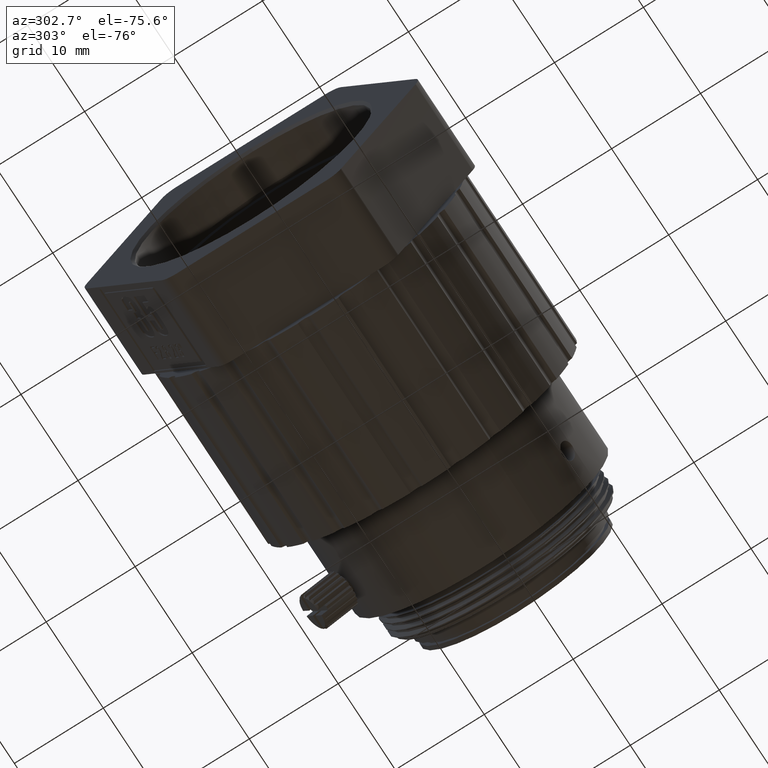
[diagram: clean part render]
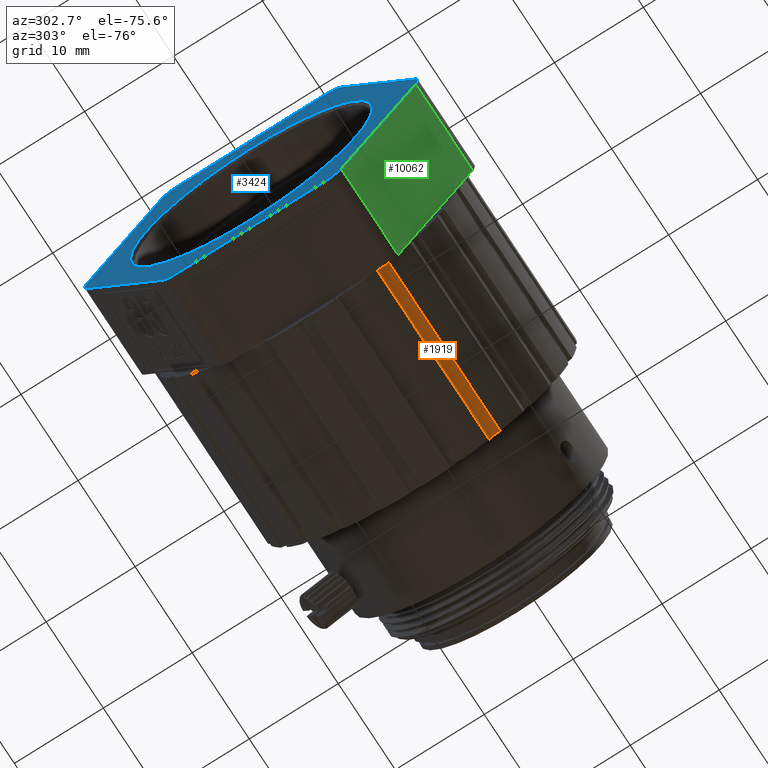
[diagram: same view with three faces highlighted in distinct colors, each labeled with its STEP entity id]
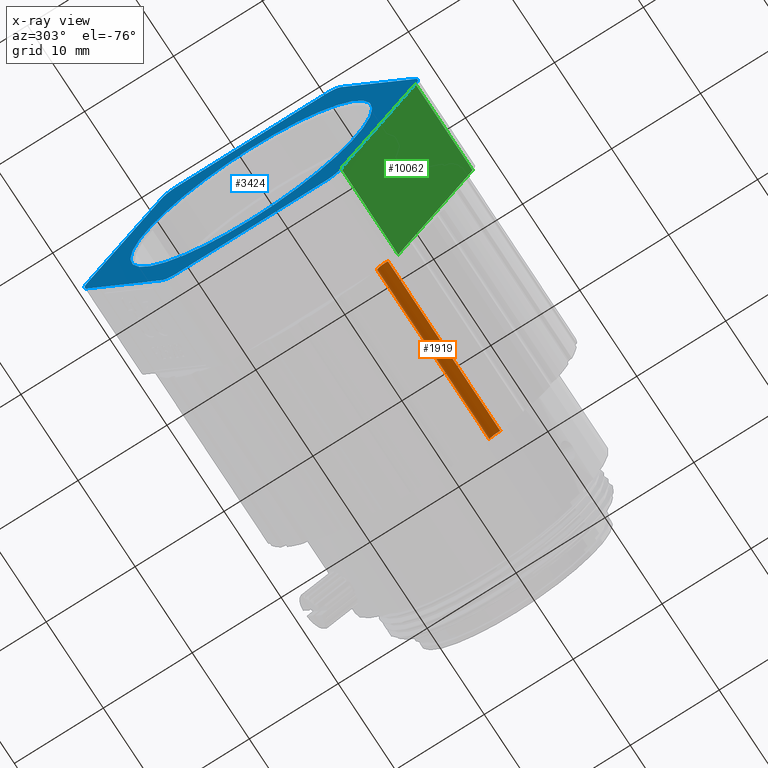
[diagram: x-ray of the same camera — body ghosted, the three highlighted faces saturated]
A machine part, auxiliary view with three faces highlighted in distinct colors.
The next image is the same camera in x-ray (body ghosted, the three faces saturated) — at least one of them is partly hidden behind the body in this view.
Their STEP definitions:

[orange] entity #1919 — the highlighted cylindrical surface (edge-blend (fillet) strip) has radius 1 mm, axis along (-1, 0, 0).
#409 = VERTEX_POINT ( 'NONE', #12968 ) ;
#706 = DIRECTION ( 'NONE',  ( -1.000000000000000000, 0.000000000000000000, 0.000000000000000000 ) ) ;
#1034 = VERTEX_POINT ( 'NONE', #4685 ) ;
#1919 = ADVANCED_FACE ( 'NONE', ( #9490 ), #14355, .F. ) ;
#3427 = CARTESIAN_POINT ( 'NONE',  ( 22.76177132339851639, -5.487021484132825755, 30.45945859609111750 ) ) ;
#3593 = CIRCLE ( 'NONE', #8950, 1.000000000000001332 ) ;
#4685 = CARTESIAN_POINT ( 'NONE',  ( -11.43804180327911979, -4.532625908064136233, 30.75800354141866677 ) ) ;
#5323 = CARTESIAN_POINT ( 'NONE',  ( -17.27467827770134789, -5.766780465729038241, 31.41952886029908498 ) ) ;
#5591 = EDGE_LOOP ( 'NONE', ( #10936, #7680, #13761, #15342 ) ) ;
#5734 = EDGE_CURVE ( 'NONE', #7449, #1034, #3593, .T. ) ;
#5873 = CARTESIAN_POINT ( 'NONE',  ( 8.259214877692100387, -5.487021484132825755, 30.45945859609111750 ) ) ;
#6513 = DIRECTION ( 'NONE',  ( 0.000000000000000000, -0.4724273177222768072, -0.8813696327136163466 ) ) ;
#7075 = DIRECTION ( 'NONE',  ( -1.000000000000000000, 0.000000000000000000, 0.000000000000000000 ) ) ;
#7449 = VERTEX_POINT ( 'NONE', #15158 ) ;
#7509 = EDGE_CURVE ( 'NONE', #7449, #409, #11402, .T. ) ;
#7680 = ORIENTED_EDGE ( 'NONE', *, *, #9180, .F. ) ;
#8924 = CARTESIAN_POINT ( 'NONE',  ( -11.43804180327911979, -5.487021484132825755, 30.45945859609111750 ) ) ;
#8950 = AXIS2_PLACEMENT_3D ( 'NONE', #8924, #13636, #6513 ) ;
#9067 = CIRCLE ( 'NONE', #9084, 1.000000000000001332 ) ;
#9084 = AXIS2_PLACEMENT_3D ( 'NONE', #5873, #7075, #11951 ) ;
#9180 = EDGE_CURVE ( 'NONE', #409, #12926, #9067, .T. ) ;
#9490 = FACE_OUTER_BOUND ( 'NONE', #5591, .T. ) ;
#9503 = AXIS2_PLACEMENT_3D ( 'NONE', #3427, #13165, #11002 ) ;
#9505 = VECTOR ( 'NONE', #706, 1000.000000000000000 ) ;
#10432 = LINE ( 'NONE', #14252, #9505 ) ;
#10800 = CARTESIAN_POINT ( 'NONE',  ( 8.259214877692100387, -4.532625908064136233, 30.75800354141866677 ) ) ;
#10936 = ORIENTED_EDGE ( 'NONE', *, *, #11591, .F. ) ;
#11002 = DIRECTION ( 'NONE',  ( 0.000000000000000000, -0.4724273177222768072, -0.8813696327136163466 ) ) ;
#11402 = LINE ( 'NONE', #5323, #14450 ) ;
#11591 = EDGE_CURVE ( 'NONE', #12926, #1034, #10432, .T. ) ;
#11951 = DIRECTION ( 'NONE',  ( 0.000000000000000000, -0.4724273177222768072, -0.8813696327136163466 ) ) ;
#12361 = DIRECTION ( 'NONE',  ( 1.000000000000000000, -0.000000000000000000, -0.000000000000000000 ) ) ;
#12926 = VERTEX_POINT ( 'NONE', #10800 ) ;
#12968 = CARTESIAN_POINT ( 'NONE',  ( 8.259214877692100387, -5.766780465729038241, 31.41952886029908498 ) ) ;
#13165 = DIRECTION ( 'NONE',  ( -1.000000000000000000, 0.000000000000000000, 0.000000000000000000 ) ) ;
#13636 = DIRECTION ( 'NONE',  ( -1.000000000000000000, 0.000000000000000000, 0.000000000000000000 ) ) ;
#13761 = ORIENTED_EDGE ( 'NONE', *, *, #7509, .F. ) ;
#14252 = CARTESIAN_POINT ( 'NONE',  ( -17.27467827770134789, -4.532625908064080278, 30.75800354141866677 ) ) ;
#14355 = CYLINDRICAL_SURFACE ( 'NONE', #9503, 1.000000000000001332 ) ;
#14450 = VECTOR ( 'NONE', #12361, 1000.000000000000000 ) ;
#15158 = CARTESIAN_POINT ( 'NONE',  ( -11.43804180327911979, -5.766780465729038241, 31.41952886029908498 ) ) ;
#15342 = ORIENTED_EDGE ( 'NONE', *, *, #5734, .T. ) ;

[blue] entity #3424 — the highlighted planar face has unit normal (1, 0, 0).
#1 = DIRECTION ( 'NONE',  ( 0.000000000000000000, 0.000000000000000000, 1.000000000000000000 ) ) ;
#450 = CARTESIAN_POINT ( 'NONE',  ( -21.53823426454803780, -13.63200210808823698, 46.50038591147402656 ) ) ;
#453 = CARTESIAN_POINT ( 'NONE',  ( -21.53823426454803780, 22.16371458166843667, 46.50038591147355760 ) ) ;
#612 = CARTESIAN_POINT ( 'NONE',  ( -21.53823426454803780, -15.36405291565712261, 45.50038591147394840 ) ) ;
#617 = DIRECTION ( 'NONE',  ( 0.000000000000000000, -0.5000000000000008882, -0.8660254037844381525 ) ) ;
#637 = DIRECTION ( 'NONE',  ( 0.000000000000000000, 0.000000000000000000, 1.000000000000000000 ) ) ;
#684 = VECTOR ( 'NONE', #11841, 1000.000000000000114 ) ;
#925 = DIRECTION ( 'NONE',  ( 0.000000000000000000, 0.000000000000000000, 1.000000000000000000 ) ) ;
#949 = EDGE_CURVE ( 'NONE', #5940, #12330, #5157, .T. ) ;
#1495 = ORIENTED_EDGE ( 'NONE', *, *, #6230, .F. ) ;
#1571 = CARTESIAN_POINT ( 'NONE',  ( -21.53823426454803780, -15.94140318484704721, 46.50038591147401235 ) ) ;
#1739 = CARTESIAN_POINT ( 'NONE',  ( -21.53823426454803780, -6.992474012407878803, 62.00038591147402656 ) ) ;
#1891 = CARTESIAN_POINT ( 'NONE',  ( -21.53823426454803780, 21.58636431247873588, 45.50038591147351497 ) ) ;
#1914 = CARTESIAN_POINT ( 'NONE',  ( -21.53823426454803780, 13.21478540922971234, 31.00038591147420775 ) ) ;
#1931 = VECTOR ( 'NONE', #12576, 1000.000000000000000 ) ;
#2114 = CIRCLE ( 'NONE', #8495, 2.000000000000001776 ) ;
#2321 = CIRCLE ( 'NONE', #6359, 13.59990427942969760 ) ;
#2367 = AXIS2_PLACEMENT_3D ( 'NONE', #14351, #14195, #5646 ) ;
#2419 = VERTEX_POINT ( 'NONE', #612 ) ;
#2433 = CARTESIAN_POINT ( 'NONE',  ( -21.53823426454803780, -15.36405291565712261, 47.50038591147410472 ) ) ;
#2547 = EDGE_CURVE ( 'NONE', #15717, #3585, #2114, .T. ) ;
#2674 = VERTEX_POINT ( 'NONE', #2433 ) ;
#2802 = ORIENTED_EDGE ( 'NONE', *, *, #15022, .F. ) ;
#2988 = LINE ( 'NONE', #7929, #11648 ) ;
#3063 = DIRECTION ( 'NONE',  ( 0.000000000000000000, -1.000000000000000000, 3.641974784817423192E-16 ) ) ;
#3275 = VERTEX_POINT ( 'NONE', #1914 ) ;
#3424 = ADVANCED_FACE ( 'NONE', ( #3510, #10935 ), #4784, .F. ) ;
#3510 = FACE_OUTER_BOUND ( 'NONE', #12028, .T. ) ;
#3550 = EDGE_CURVE ( 'NONE', #12330, #2674, #9152, .T. ) ;
#3585 = VERTEX_POINT ( 'NONE', #3761 ) ;
#3591 = VERTEX_POINT ( 'NONE', #4205 ) ;
#3741 = CIRCLE ( 'NONE', #5005, 2.000000000000001776 ) ;
#3750 = CIRCLE ( 'NONE', #9344, 2.000000000000001776 ) ;
#3761 = CARTESIAN_POINT ( 'NONE',  ( -21.53823426454803780, -5.260423204838993172, 30.00038591147414024 ) ) ;
#3923 = CIRCLE ( 'NONE', #5186, 2.000000000000001776 ) ;
#4205 = CARTESIAN_POINT ( 'NONE',  ( -21.53823426454803780, 11.48273460166016058, 63.00038591147405498 ) ) ;
#4550 = DIRECTION ( 'NONE',  ( 1.000000000000000000, -0.000000000000000000, -0.000000000000000000 ) ) ;
#4784 = PLANE ( 'NONE',  #11309 ) ;
#4812 = CARTESIAN_POINT ( 'NONE',  ( -21.53823426454803780, -6.415123743217954200, 30.00038591147414024 ) ) ;
#4831 = EDGE_LOOP ( 'NONE', ( #9812 ) ) ;
#5005 = AXIS2_PLACEMENT_3D ( 'NONE', #14421, #9886, #1 ) ;
#5107 = CARTESIAN_POINT ( 'NONE',  ( -21.53823426454803780, -6.992474012407878803, 31.00038591147417932 ) ) ;
#5157 = CIRCLE ( 'NONE', #8469, 2.000000000000001776 ) ;
#5186 = AXIS2_PLACEMENT_3D ( 'NONE', #14288, #4550, #14449 ) ;
#5343 = ORIENTED_EDGE ( 'NONE', *, *, #2547, .F. ) ;
#5540 = ORIENTED_EDGE ( 'NONE', *, *, #12214, .F. ) ;
#5566 = CARTESIAN_POINT ( 'NONE',  ( -21.53823426454803780, -5.260423204838993172, 61.00038591147405498 ) ) ;
#5613 = DIRECTION ( 'NONE',  ( 1.000000000000000000, -0.000000000000000000, -0.000000000000000000 ) ) ;
#5616 = VECTOR ( 'NONE', #14100, 1000.000000000000000 ) ;
#5644 = CARTESIAN_POINT ( 'NONE',  ( -21.53823426454826162, 3.111155698410916770, 60.10029019090401903 ) ) ;
#5646 = DIRECTION ( 'NONE',  ( 0.000000000000000000, -5.204170427930434694E-15, 1.000000000000000000 ) ) ;
#5810 = CARTESIAN_POINT ( 'NONE',  ( -21.53823426454803780, 1531.707948952429433, 46.50038591147431788 ) ) ;
#5823 = EDGE_CURVE ( 'NONE', #3585, #10008, #9005, .T. ) ;
#5877 = EDGE_CURVE ( 'NONE', #15318, #15318, #2321, .T. ) ;
#5919 = CARTESIAN_POINT ( 'NONE',  ( -21.53823426454803780, 12.63743514003934365, 63.00038591147405498 ) ) ;
#5940 = VERTEX_POINT ( 'NONE', #14563 ) ;
#6091 = ORIENTED_EDGE ( 'NONE', *, *, #10349, .F. ) ;
#6230 = EDGE_CURVE ( 'NONE', #2674, #2419, #3750, .T. ) ;
#6359 = AXIS2_PLACEMENT_3D ( 'NONE', #6981, #12104, #925 ) ;
#6770 = ORIENTED_EDGE ( 'NONE', *, *, #7201, .F. ) ;
#6802 = DIRECTION ( 'NONE',  ( 0.000000000000000000, -3.469446951953611033E-15, 1.000000000000000000 ) ) ;
#6970 = DIRECTION ( 'NONE',  ( 0.000000000000000000, 2.602085213965208275E-15, 1.000000000000000000 ) ) ;
#6981 = CARTESIAN_POINT ( 'NONE',  ( -21.53823426454826162, 3.111155698410916770, 46.50038591147431788 ) ) ;
#7038 = ORIENTED_EDGE ( 'NONE', *, *, #12656, .F. ) ;
#7201 = EDGE_CURVE ( 'NONE', #2419, #15717, #15756, .T. ) ;
#7929 = CARTESIAN_POINT ( 'NONE',  ( -21.53823426454803780, -6.415123743217954200, 63.00038591147405498 ) ) ;
#7966 = CARTESIAN_POINT ( 'NONE',  ( -21.53823426454803780, 13.21478540922904621, 62.00038591147399814 ) ) ;
#8069 = ORIENTED_EDGE ( 'NONE', *, *, #5823, .F. ) ;
#8214 = VERTEX_POINT ( 'NONE', #8277 ) ;
#8277 = CARTESIAN_POINT ( 'NONE',  ( -21.53823426454803780, 21.58636431247873588, 47.50038591147362155 ) ) ;
#8407 = LINE ( 'NONE', #5919, #684 ) ;
#8469 = AXIS2_PLACEMENT_3D ( 'NONE', #5566, #10515, #637 ) ;
#8495 = AXIS2_PLACEMENT_3D ( 'NONE', #10725, #5613, #6970 ) ;
#8797 = ORIENTED_EDGE ( 'NONE', *, *, #11237, .F. ) ;
#9005 = LINE ( 'NONE', #11778, #5616 ) ;
#9152 = LINE ( 'NONE', #1571, #12848 ) ;
#9247 = CIRCLE ( 'NONE', #2367, 1.999999999999994893 ) ;
#9344 = AXIS2_PLACEMENT_3D ( 'NONE', #450, #11454, #6802 ) ;
#9351 = VECTOR ( 'NONE', #9688, 1000.000000000000000 ) ;
#9688 = DIRECTION ( 'NONE',  ( 0.000000000000000000, 0.5000000000000046629, -0.8660254037844359321 ) ) ;
#9761 = CARTESIAN_POINT ( 'NONE',  ( -21.53823426454803780, 11.48273460166082671, 30.00038591147413669 ) ) ;
#9812 = ORIENTED_EDGE ( 'NONE', *, *, #5877, .F. ) ;
#9886 = DIRECTION ( 'NONE',  ( 1.000000000000000000, -0.000000000000000000, -0.000000000000000000 ) ) ;
#10008 = VERTEX_POINT ( 'NONE', #9761 ) ;
#10349 = EDGE_CURVE ( 'NONE', #10008, #3275, #3741, .T. ) ;
#10515 = DIRECTION ( 'NONE',  ( 1.000000000000000000, -0.000000000000000000, -0.000000000000000000 ) ) ;
#10555 = VERTEX_POINT ( 'NONE', #1891 ) ;
#10689 = DIRECTION ( 'NONE',  ( 0.000000000000000000, 0.000000000000000000, -1.000000000000000000 ) ) ;
#10725 = CARTESIAN_POINT ( 'NONE',  ( -21.53823426454803780, -5.260423204838993172, 32.00038591147414024 ) ) ;
#10935 = FACE_BOUND ( 'NONE', #4831, .T. ) ;
#11237 = EDGE_CURVE ( 'NONE', #14850, #3591, #9247, .T. ) ;
#11309 = AXIS2_PLACEMENT_3D ( 'NONE', #5810, #14599, #10689 ) ;
#11454 = DIRECTION ( 'NONE',  ( 1.000000000000000000, -0.000000000000000000, -0.000000000000000000 ) ) ;
#11648 = VECTOR ( 'NONE', #3063, 1000.000000000000000 ) ;
#11778 = CARTESIAN_POINT ( 'NONE',  ( -21.53823426454803780, 12.63743514004000978, 30.00038591147413314 ) ) ;
#11841 = DIRECTION ( 'NONE',  ( 0.000000000000000000, -0.4999999999999992228, 0.8660254037844390407 ) ) ;
#12028 = EDGE_LOOP ( 'NONE', ( #15135, #2802, #8797, #13779, #5540, #7038, #6091, #8069, #5343, #6770, #1495, #13169 ) ) ;
#12104 = DIRECTION ( 'NONE',  ( -1.000000000000000000, 0.000000000000000000, 0.000000000000000000 ) ) ;
#12214 = EDGE_CURVE ( 'NONE', #10555, #8214, #3923, .T. ) ;
#12330 = VERTEX_POINT ( 'NONE', #1739 ) ;
#12576 = DIRECTION ( 'NONE',  ( 0.000000000000000000, 0.4999999999999973910, 0.8660254037844401509 ) ) ;
#12656 = EDGE_CURVE ( 'NONE', #3275, #10555, #12730, .T. ) ;
#12730 = LINE ( 'NONE', #453, #1931 ) ;
#12848 = VECTOR ( 'NONE', #617, 1000.000000000000000 ) ;
#13169 = ORIENTED_EDGE ( 'NONE', *, *, #3550, .F. ) ;
#13779 = ORIENTED_EDGE ( 'NONE', *, *, #15208, .F. ) ;
#14100 = DIRECTION ( 'NONE',  ( 0.000000000000000000, 1.000000000000000000, -3.641974784817296481E-16 ) ) ;
#14195 = DIRECTION ( 'NONE',  ( 1.000000000000000000, -0.000000000000000000, -0.000000000000000000 ) ) ;
#14288 = CARTESIAN_POINT ( 'NONE',  ( -21.53823426454803780, 19.85431350490984670, 46.50038591147355049 ) ) ;
#14351 = CARTESIAN_POINT ( 'NONE',  ( -21.53823426454803780, 11.48273460166016058, 61.00038591147404787 ) ) ;
#14421 = CARTESIAN_POINT ( 'NONE',  ( -21.53823426454803780, 11.48273460166082671, 32.00038591147414024 ) ) ;
#14449 = DIRECTION ( 'NONE',  ( 0.000000000000000000, -3.469446951953611033E-15, 1.000000000000000000 ) ) ;
#14563 = CARTESIAN_POINT ( 'NONE',  ( -21.53823426454803780, -5.260423204838993172, 63.00038591147405498 ) ) ;
#14599 = DIRECTION ( 'NONE',  ( 1.000000000000000000, 0.000000000000000000, 0.000000000000000000 ) ) ;
#14850 = VERTEX_POINT ( 'NONE', #7966 ) ;
#15022 = EDGE_CURVE ( 'NONE', #3591, #5940, #2988, .T. ) ;
#15135 = ORIENTED_EDGE ( 'NONE', *, *, #949, .F. ) ;
#15208 = EDGE_CURVE ( 'NONE', #8214, #14850, #8407, .T. ) ;
#15318 = VERTEX_POINT ( 'NONE', #5644 ) ;
#15717 = VERTEX_POINT ( 'NONE', #5107 ) ;
#15756 = LINE ( 'NONE', #4812, #9351 ) ;

[green] entity #10062 — the highlighted planar face has unit normal (0, -0.866, -0.5).
#612 = CARTESIAN_POINT ( 'NONE',  ( -21.53823426454803780, -15.36405291565712261, 45.50038591147394840 ) ) ;
#709 = DIRECTION ( 'NONE',  ( -1.000000000000000000, 0.000000000000000000, 0.000000000000000000 ) ) ;
#1203 = VERTEX_POINT ( 'NONE', #7164 ) ;
#1353 = EDGE_CURVE ( 'NONE', #12092, #15717, #14178, .T. ) ;
#1427 = AXIS2_PLACEMENT_3D ( 'NONE', #7670, #6236, #13518 ) ;
#1702 = ORIENTED_EDGE ( 'NONE', *, *, #9177, .T. ) ;
#1928 = LINE ( 'NONE', #4322, #2490 ) ;
#2213 = DIRECTION ( 'NONE',  ( -1.000000000000000000, -0.000000000000000000, -0.000000000000000000 ) ) ;
#2419 = VERTEX_POINT ( 'NONE', #612 ) ;
#2490 = VECTOR ( 'NONE', #4174, 1000.000000000000000 ) ;
#2863 = VECTOR ( 'NONE', #709, 1000.000000000000000 ) ;
#3414 = LINE ( 'NONE', #13149, #14404 ) ;
#4174 = DIRECTION ( 'NONE',  ( 0.000000000000000000, 0.5000000000000018874, -0.8660254037844375974 ) ) ;
#4322 = CARTESIAN_POINT ( 'NONE',  ( -11.53804180327888673, -15.36405291565712261, 45.50038591147394129 ) ) ;
#4518 = CARTESIAN_POINT ( 'NONE',  ( 38.87029084123527412, -6.992474012407878803, 31.00038591147410827 ) ) ;
#4812 = CARTESIAN_POINT ( 'NONE',  ( -21.53823426454803780, -6.415123743217954200, 30.00038591147414024 ) ) ;
#5107 = CARTESIAN_POINT ( 'NONE',  ( -21.53823426454803780, -6.992474012407878803, 31.00038591147417932 ) ) ;
#5696 = ORIENTED_EDGE ( 'NONE', *, *, #7779, .F. ) ;
#6236 = DIRECTION ( 'NONE',  ( 0.000000000000000000, -0.8660254037844359321, -0.5000000000000046629 ) ) ;
#6310 = FACE_OUTER_BOUND ( 'NONE', #13463, .T. ) ;
#7164 = CARTESIAN_POINT ( 'NONE',  ( -11.53804180327888673, -15.36405291565712261, 45.50038591147395550 ) ) ;
#7201 = EDGE_CURVE ( 'NONE', #2419, #15717, #15756, .T. ) ;
#7670 = CARTESIAN_POINT ( 'NONE',  ( 38.87029084123527412, -6.415123743217954200, 30.00038591147414024 ) ) ;
#7779 = EDGE_CURVE ( 'NONE', #1203, #12092, #1928, .T. ) ;
#8889 = CARTESIAN_POINT ( 'NONE',  ( -11.53804180327888673, -6.992474012407878803, 31.00038591147417577 ) ) ;
#9177 = EDGE_CURVE ( 'NONE', #1203, #2419, #3414, .T. ) ;
#9351 = VECTOR ( 'NONE', #9688, 1000.000000000000000 ) ;
#9688 = DIRECTION ( 'NONE',  ( 0.000000000000000000, 0.5000000000000046629, -0.8660254037844359321 ) ) ;
#10062 = ADVANCED_FACE ( 'NONE', ( #6310 ), #13594, .T. ) ;
#12092 = VERTEX_POINT ( 'NONE', #8889 ) ;
#12136 = ORIENTED_EDGE ( 'NONE', *, *, #7201, .T. ) ;
#12174 = ORIENTED_EDGE ( 'NONE', *, *, #1353, .F. ) ;
#13149 = CARTESIAN_POINT ( 'NONE',  ( 38.87029084123527412, -15.36405291565712261, 45.50038591147391998 ) ) ;
#13463 = EDGE_LOOP ( 'NONE', ( #12136, #12174, #5696, #1702 ) ) ;
#13518 = DIRECTION ( 'NONE',  ( 0.000000000000000000, 0.5000000000000046629, -0.8660254037844359321 ) ) ;
#13594 = PLANE ( 'NONE',  #1427 ) ;
#14178 = LINE ( 'NONE', #4518, #2863 ) ;
#14404 = VECTOR ( 'NONE', #2213, 1000.000000000000000 ) ;
#15717 = VERTEX_POINT ( 'NONE', #5107 ) ;
#15756 = LINE ( 'NONE', #4812, #9351 ) ;